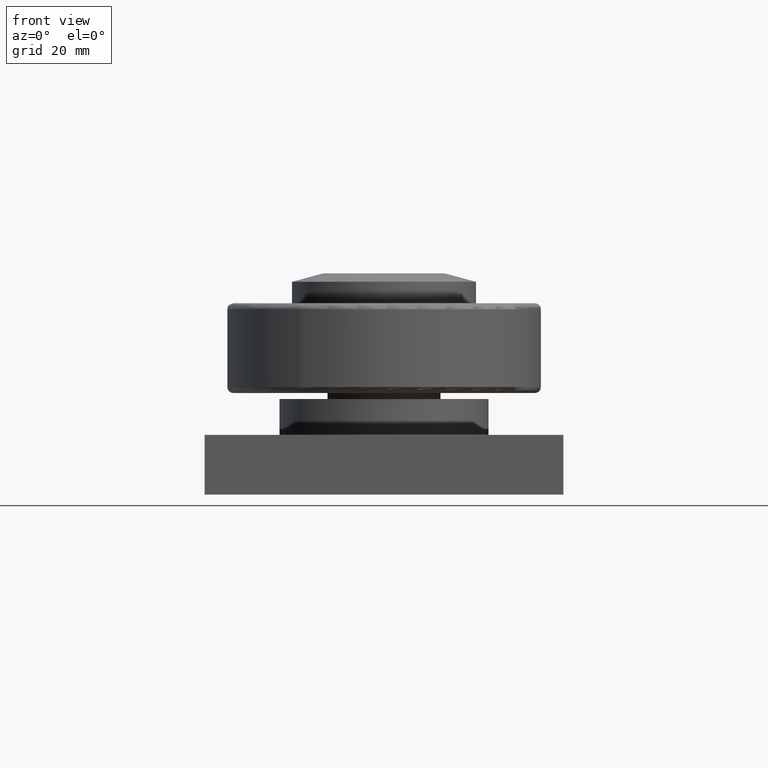
[diagram: clean part render]
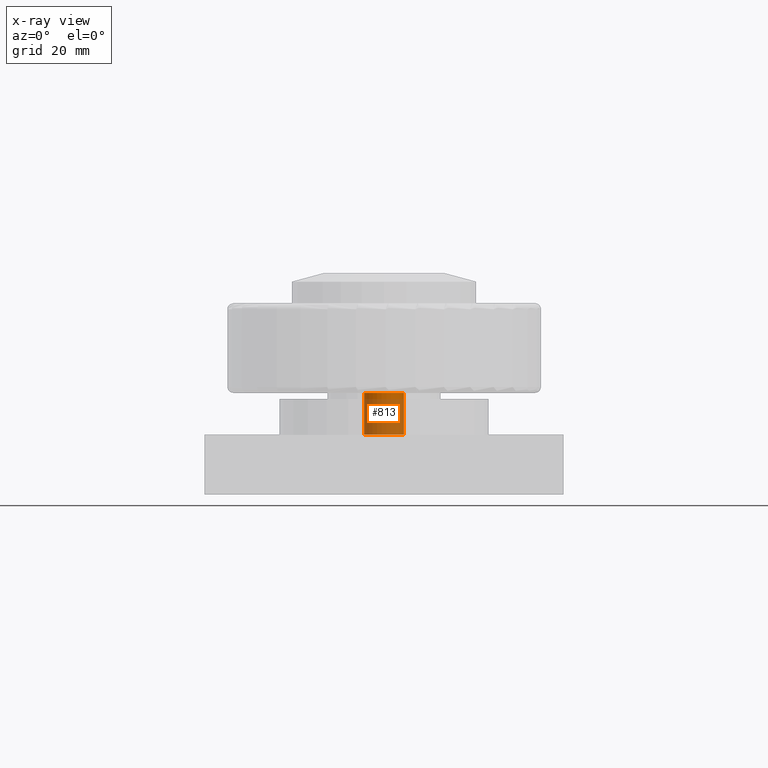
[diagram: x-ray — body ghosted, one internal face saturated and labeled with its STEP entity id]
A machine part, front view, then the same camera in x-ray: the body is ghosted and one INTERNAL B-rep face — a face not visible from any outside direction — is saturated and labeled: STEP entity #813.
In plain terms, the highlighted cylindrical surface (bore or boss wall) has radius 3.3235 mm, axis along (0, 0, -1).
Its self-contained STEP definition (entity closure, byte-faithful):
#782=CARTESIAN_POINT('',(33.323499999999981,50.0,10.0));
#783=VERTEX_POINT('',#782);
#784=CARTESIAN_POINT('',(29.999999999999993,50.0,10.0));
#785=DIRECTION('',(0.0,0.0,1.0));
#786=DIRECTION('',(-1.0,0.0,0.0));
#787=AXIS2_PLACEMENT_3D('',#784,#785,#786);
#788=CIRCLE('',#787,3.3235);
#789=EDGE_CURVE('',#783,#783,#788,.T.);
#794=CARTESIAN_POINT('',(29.999999999999993,50.0,11.000000000000012));
#795=DIRECTION('',(0.0,0.0,-1.0));
#796=DIRECTION('',(-1.0,0.0,0.0));
#797=AXIS2_PLACEMENT_3D('',#794,#795,#796);
#798=CYLINDRICAL_SURFACE('',#797,3.3235);
#799=CARTESIAN_POINT('',(26.676499999999987,50.0,17.000000000000011));
#800=VERTEX_POINT('',#799);
#801=CARTESIAN_POINT('',(29.999999999999993,50.0,17.0));
#802=DIRECTION('',(0.0,0.0,-1.0));
#803=DIRECTION('',(-1.0,0.0,0.0));
#804=AXIS2_PLACEMENT_3D('',#801,#802,#803);
#805=CIRCLE('',#804,3.3235);
#806=EDGE_CURVE('',#800,#800,#805,.T.);
#807=ORIENTED_EDGE('',*,*,#806,.F.);
#808=EDGE_LOOP('',(#807));
#809=FACE_OUTER_BOUND('',#808,.T.);
#810=ORIENTED_EDGE('',*,*,#789,.F.);
#811=EDGE_LOOP('',(#810));
#812=FACE_BOUND('',#811,.T.);
#813=ADVANCED_FACE('',(#809,#812),#798,.F.);